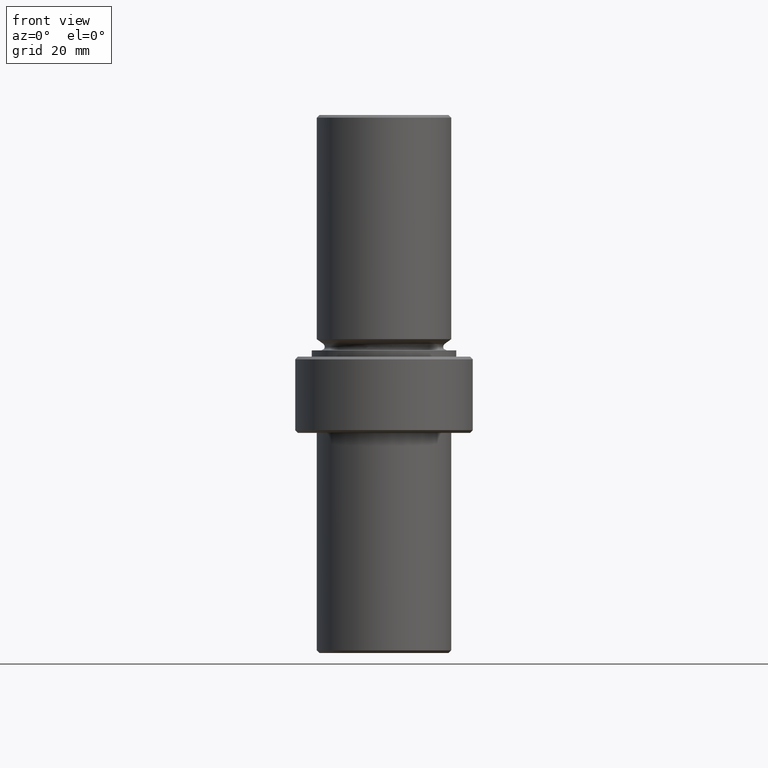
[diagram: clean part render]
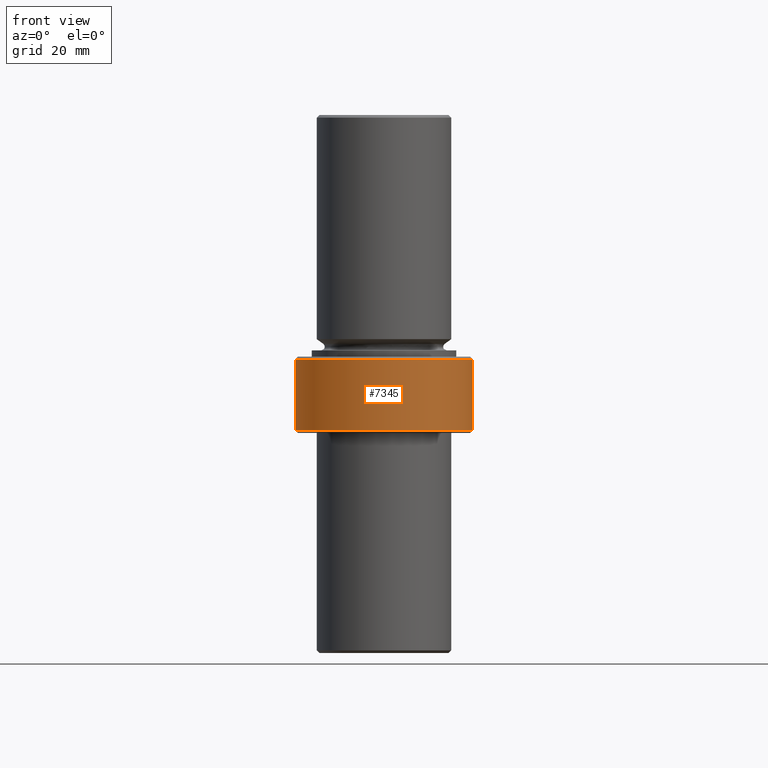
[diagram: same view with one face highlighted and labeled with its STEP entity id]
A machine part, front view. The second image highlights one B-rep face of the part: STEP entity #7345.
In plain terms, the highlighted cylindrical surface (bore or boss wall) has radius 25.146 mm, axis along (0, 0, -1).
Its self-contained STEP definition (entity closure, byte-faithful):
#6744=CARTESIAN_POINT('',(-0.075046652157171,-0.987151457477528,-0.108000000000004));
#6745=VERTEX_POINT('',#6744);
#6746=CARTESIAN_POINT('',(-0.138999999999998,-0.980193348273700,0.008999999999999));
#6747=VERTEX_POINT('',#6746);
#6748=CARTESIAN_POINT('',(-0.075046652157182,-0.987151457477527,-0.108000000000022));
#6749=CARTESIAN_POINT('',(-0.083613105382835,-0.986500206212509,-0.102505268073133));
#6750=CARTESIAN_POINT('',(-0.091445215304752,-0.985791590674020,-0.096130469865110));
#6751=CARTESIAN_POINT('',(-0.110616075021153,-0.983878845305895,-0.076959610148709));
#6752=CARTESIAN_POINT('',(-0.121309679145296,-0.982565611320236,-0.061344933374850));
#6753=CARTESIAN_POINT('',(-0.135502264843890,-0.980709108484541,-0.027105174302385));
#6754=CARTESIAN_POINT('',(-0.139000000000041,-0.980193348273694,-0.008478089384737));
#6755=CARTESIAN_POINT('',(-0.139000000000041,-0.980193348273694,0.008999999999999));
#6756=B_SPLINE_CURVE_WITH_KNOTS('',3,(#6748,#6749,#6750,#6751,#6752,#6753,#6754,#6755),.UNSPECIFIED.,.F.,.U.,(4,2,2,4),(0.285499841136690,0.314602809104249,0.367037077258455,0.419471345412661),.UNSPECIFIED.);
#6757=EDGE_CURVE('',#6745,#6747,#6756,.T.);
#6776=CARTESIAN_POINT('',(0.075046652157175,-0.987151457477528,-0.108000000000004));
#6777=VERTEX_POINT('',#6776);
#6784=CARTESIAN_POINT('',(0.139000000000002,-0.980193348273700,0.008999999999999));
#6785=VERTEX_POINT('',#6784);
#6786=CARTESIAN_POINT('',(0.138999999999959,-0.980193348273706,0.008999999999999));
#6787=CARTESIAN_POINT('',(0.138999999999959,-0.980193348273706,-0.008478089384737));
#6788=CARTESIAN_POINT('',(0.135502264843893,-0.980709108484540,-0.027105174302385));
#6789=CARTESIAN_POINT('',(0.121309679145300,-0.982565611320236,-0.061344933374850));
#6790=CARTESIAN_POINT('',(0.110616075021157,-0.983878845305894,-0.076959610148709));
#6791=CARTESIAN_POINT('',(0.091445215304755,-0.985791590674020,-0.096130469865110));
#6792=CARTESIAN_POINT('',(0.083613105382812,-0.986500206212511,-0.102505268073090));
#6793=CARTESIAN_POINT('',(0.075046652157161,-0.987151457477529,-0.107999999999983));
#6794=B_SPLINE_CURVE_WITH_KNOTS('',3,(#6786,#6787,#6788,#6789,#6790,#6791,#6792,#6793),.UNSPECIFIED.,.F.,.U.,(4,2,2,4),(0.0,0.052434268154206,0.104868536308412,0.133971504275971),.UNSPECIFIED.);
#6795=EDGE_CURVE('',#6785,#6777,#6794,.T.);
#6797=CARTESIAN_POINT('',(0.075046652157178,-0.987151457477527,0.125999999999996));
#6798=VERTEX_POINT('',#6797);
#6799=CARTESIAN_POINT('',(0.075046652157167,-0.987151457477528,0.125999999999979));
#6800=CARTESIAN_POINT('',(0.083613105382816,-0.986500206212511,0.120505268073086));
#6801=CARTESIAN_POINT('',(0.091445215304756,-0.985791590674020,0.114130469865103));
#6802=CARTESIAN_POINT('',(0.110616075021157,-0.983878845305894,0.094959610148702));
#6803=CARTESIAN_POINT('',(0.121309679145300,-0.982565611320236,0.079344933374843));
#6804=CARTESIAN_POINT('',(0.135502264843893,-0.980709108484540,0.045105174302379));
#6805=CARTESIAN_POINT('',(0.138999999999959,-0.980193348273706,0.026478089384734));
#6806=CARTESIAN_POINT('',(0.138999999999959,-0.980193348273706,0.008999999999999));
#6807=B_SPLINE_CURVE_WITH_KNOTS('',3,(#6799,#6800,#6801,#6802,#6803,#6804,#6805,#6806),.UNSPECIFIED.,.F.,.U.,(4,2,2,4),(-0.133971504275967,-0.104868536308412,-0.052434268154206,0.0),.UNSPECIFIED.);
#6808=EDGE_CURVE('',#6798,#6785,#6807,.T.);
#6827=CARTESIAN_POINT('',(-0.075046652157175,-0.987151457477528,0.125999999999996));
#6828=VERTEX_POINT('',#6827);
#6835=CARTESIAN_POINT('',(-0.139000000000041,-0.980193348273694,0.008999999999999));
#6836=CARTESIAN_POINT('',(-0.139000000000041,-0.980193348273694,0.026478089384734));
#6837=CARTESIAN_POINT('',(-0.135502264843890,-0.980709108484541,0.045105174302379));
#6838=CARTESIAN_POINT('',(-0.121309679145296,-0.982565611320236,0.079344933374843));
#6839=CARTESIAN_POINT('',(-0.110616075021153,-0.983878845305895,0.094959610148702));
#6840=CARTESIAN_POINT('',(-0.091445215304753,-0.985791590674020,0.114130469865103));
#6841=CARTESIAN_POINT('',(-0.083613105382840,-0.986500206212509,0.120505268073130));
#6842=CARTESIAN_POINT('',(-0.075046652157189,-0.987151457477527,0.126000000000017));
#6843=B_SPLINE_CURVE_WITH_KNOTS('',3,(#6835,#6836,#6837,#6838,#6839,#6840,#6841,#6842),.UNSPECIFIED.,.F.,.U.,(4,2,2,4),(0.419471345412661,0.471905613566867,0.524339881721073,0.553442849688628),.UNSPECIFIED.);
#6844=EDGE_CURVE('',#6747,#6828,#6843,.T.);
#7294=CARTESIAN_POINT('',(0.990000000000000,-3.431478E-015,0.454000000000000));
#7295=VERTEX_POINT('',#7294);
#7296=CARTESIAN_POINT('',(0.0,-3.552714E-015,0.454000000000000));
#7297=DIRECTION('',(0.0,0.0,1.0));
#7298=DIRECTION('',(-1.0,0.0,0.0));
#7299=AXIS2_PLACEMENT_3D('',#7296,#7297,#7298);
#7300=CIRCLE('',#7299,0.990000000000000);
#7301=EDGE_CURVE('',#7295,#7295,#7300,.T.);
#7306=CARTESIAN_POINT('',(0.0,-3.552714E-015,-0.366000000000000));
#7307=DIRECTION('',(0.0,0.0,1.0));
#7308=DIRECTION('',(1.0,0.0,0.0));
#7309=AXIS2_PLACEMENT_3D('',#7306,#7307,#7308);
#7310=CYLINDRICAL_SURFACE('',#7309,0.990000000000000);
#7311=CARTESIAN_POINT('',(-0.990000000000000,-3.552714E-015,-0.336000000000000));
#7312=VERTEX_POINT('',#7311);
#7313=CARTESIAN_POINT('',(0.0,-3.552714E-015,-0.336000000000000));
#7314=DIRECTION('',(0.0,0.0,-1.0));
#7315=DIRECTION('',(-1.0,0.0,0.0));
#7316=AXIS2_PLACEMENT_3D('',#7313,#7314,#7315);
#7317=CIRCLE('',#7316,0.990000000000000);
#7318=EDGE_CURVE('',#7312,#7312,#7317,.T.);
#7319=ORIENTED_EDGE('',*,*,#7318,.F.);
#7320=EDGE_LOOP('',(#7319));
#7321=FACE_OUTER_BOUND('',#7320,.T.);
#7322=ORIENTED_EDGE('',*,*,#7301,.F.);
#7323=EDGE_LOOP('',(#7322));
#7324=FACE_BOUND('',#7323,.T.);
#7325=CARTESIAN_POINT('',(0.0,-3.552714E-015,-0.108000000000004));
#7326=DIRECTION('',(0.0,0.0,-1.0));
#7327=DIRECTION('',(1.0,0.0,0.0));
#7328=AXIS2_PLACEMENT_3D('',#7325,#7326,#7327);
#7329=CIRCLE('',#7328,0.990000000000000);
#7330=EDGE_CURVE('',#6777,#6745,#7329,.T.);
#7331=ORIENTED_EDGE('',*,*,#7330,.T.);
#7332=ORIENTED_EDGE('',*,*,#6757,.T.);
#7333=ORIENTED_EDGE('',*,*,#6844,.T.);
#7334=CARTESIAN_POINT('',(0.0,-3.552714E-015,0.125999999999996));
#7335=DIRECTION('',(0.0,0.0,1.0));
#7336=DIRECTION('',(1.0,0.0,0.0));
#7337=AXIS2_PLACEMENT_3D('',#7334,#7335,#7336);
#7338=CIRCLE('',#7337,0.990000000000000);
#7339=EDGE_CURVE('',#6828,#6798,#7338,.T.);
#7340=ORIENTED_EDGE('',*,*,#7339,.T.);
#7341=ORIENTED_EDGE('',*,*,#6808,.T.);
#7342=ORIENTED_EDGE('',*,*,#6795,.T.);
#7343=EDGE_LOOP('',(#7331,#7332,#7333,#7340,#7341,#7342));
#7344=FACE_BOUND('',#7343,.T.);
#7345=ADVANCED_FACE('',(#7321,#7324,#7344),#7310,.T.);